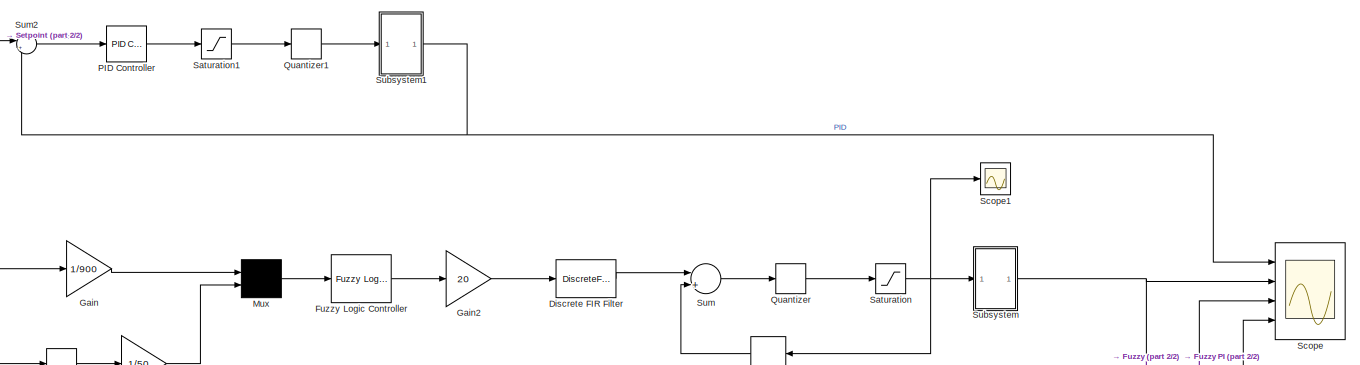
[diagram: root canvas - part 1/2, full width, top band]
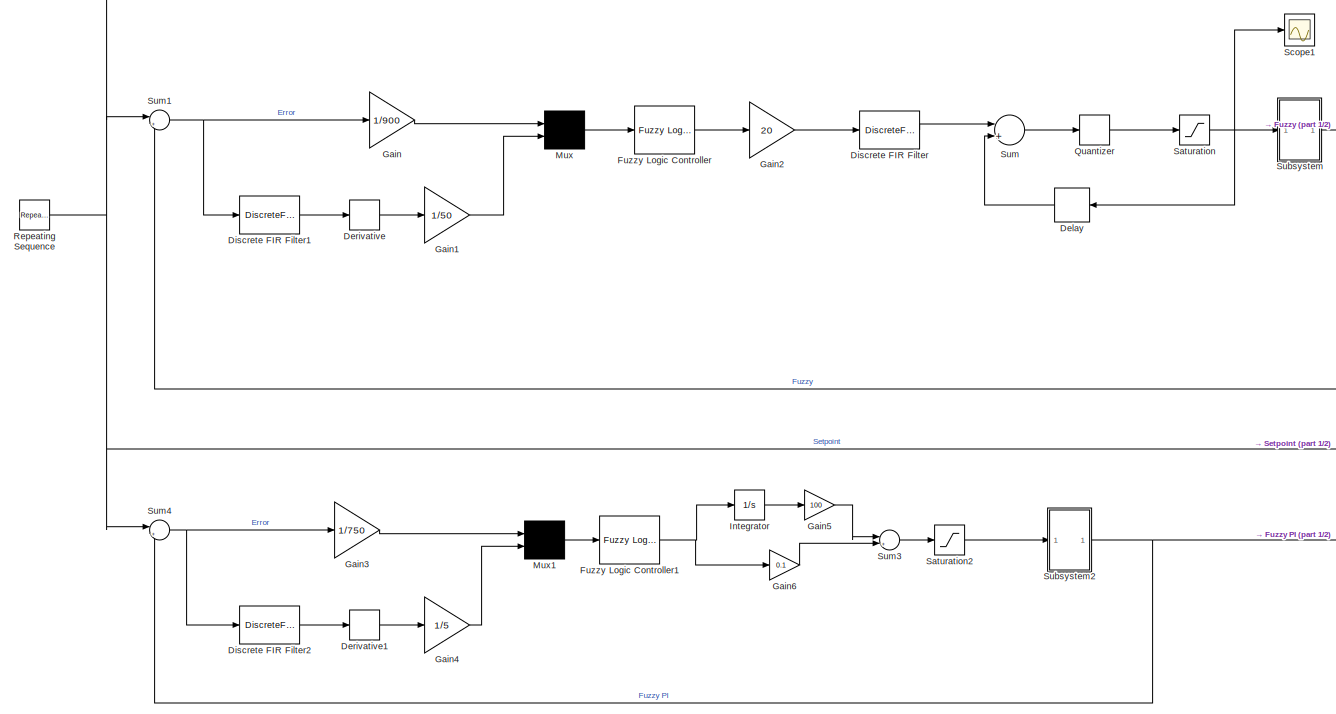
[diagram: root canvas - part 2/2, most of the canvas]
MODEL slx_39d7918f11b2
KIND model
CONFIG AbsTol = auto
CONFIG EnableMultiTasking = off
CONFIG FixedStep = auto
CONFIG MaxStep = auto
CONFIG MinStep = auto
CONFIG RelTol = 1e-3
CONFIG SampleTimeConstraint = Unconstrained
CONFIG Solver = VariableStepAuto
CONFIG SolverName = VariableStepAuto
CONFIG StartTime = 0.0
CONFIG StopTime = 1500.0
BLOCK [Delay] Delay
  DelayLength = 1
  InputPortMap = u0
  Ports = [1, 1]
BLOCK [Derivative] Derivative
BLOCK [Derivative] Derivative1
BLOCK [DiscreteFir] Discrete FIR Filter
  Coefficients = [0.25 0.25 0.25 0.25]
  InputPortMap = u0
  OutputPortMap = o0
  Ports = [1, 1]
BLOCK [DiscreteFir] Discrete FIR Filter1
  Coefficients = [0.25 0.25 0.25 0.25]
  InputPortMap = u0
  OutputPortMap = o0
  Ports = [1, 1]
BLOCK [DiscreteFir] Discrete FIR Filter2
  Coefficients = [0.25 0.25 0.25 0.25]
  InputPortMap = u0
  OutputPortMap = o0
  Ports = [1, 1]
BLOCK [Reference] Fuzzy Logic Controller  REF=fuzblock/Fuzzy Logic   (lib defined in mdl_858b3b3e7478)
Controller
  Ports = [1, 1]
  SourceBlock = fuzblock/Fuzzy Logic \nController
  SourceType = FIS
BLOCK [Reference] Fuzzy Logic Controller1  REF=fuzblock/Fuzzy Logic   (lib defined in mdl_858b3b3e7478)
Controller
  Ports = [1, 1]
  SourceBlock = fuzblock/Fuzzy Logic \nController
  SourceType = FIS
BLOCK [Gain] Gain
  Gain = 1/900
  OutDataTypeStr = Inherit: Inherit via internal rule
  ParamDataTypeStr = Inherit: Inherit via internal rule
  SaturateOnIntegerOverflow = off
BLOCK [Gain] Gain1
  Gain = 1/50
  OutDataTypeStr = Inherit: Inherit via internal rule
  ParamDataTypeStr = Inherit: Inherit via internal rule
  SaturateOnIntegerOverflow = off
BLOCK [Gain] Gain2
  Gain = 20
  OutDataTypeStr = Inherit: Inherit via internal rule
  ParamDataTypeStr = Inherit: Inherit via internal rule
  SaturateOnIntegerOverflow = off
BLOCK [Gain] Gain3
  Gain = 1/750
  OutDataTypeStr = Inherit: Inherit via internal rule
  ParamDataTypeStr = Inherit: Inherit via internal rule
  SaturateOnIntegerOverflow = off
BLOCK [Gain] Gain4
  Gain = 1/5
  OutDataTypeStr = Inherit: Inherit via internal rule
  ParamDataTypeStr = Inherit: Inherit via internal rule
  SaturateOnIntegerOverflow = off
BLOCK [Gain] Gain5
  Gain = 100
  OutDataTypeStr = Inherit: Inherit via internal rule
  ParamDataTypeStr = Inherit: Inherit via internal rule
  SaturateOnIntegerOverflow = off
BLOCK [Gain] Gain6
  Gain = 0.1
  OutDataTypeStr = Inherit: Inherit via internal rule
  ParamDataTypeStr = Inherit: Inherit via internal rule
  SaturateOnIntegerOverflow = off
BLOCK [Integrator] Integrator
  Ports = [1, 1]
BLOCK [Mux] Mux
  DisplayOption = signals
  Inputs = 2
  Ports = [2, 1]
BLOCK [Mux] Mux1
  DisplayOption = signals
  Inputs = 2
  Ports = [2, 1]
BLOCK [Reference] PID Controller  REF=simulink/Continuous/PID Controller
  Ports = [1, 1]
  SourceBlock = simulink/Continuous/PID Controller
  SourceType = PID 1dof
BLOCK [Quantizer] Quantizer
  QuantizationInterval = 1
BLOCK [Quantizer] Quantizer1
  QuantizationInterval = 1
BLOCK [Reference] Repeating Sequence  REF=simulink/Sources/Repeating
Sequence
  Ports = [0, 1]
  SourceBlock = simulink/Sources/Repeating\nSequence
  SourceType = Repeating table
BLOCK [Saturate] Saturation
  InputPortMap = u0
  LowerLimit = 0
  Ports = [1, 1]
  UpperLimit = 100
BLOCK [Saturate] Saturation1
  InputPortMap = u0
  LowerLimit = 0
  Ports = [1, 1]
  UpperLimit = 100
BLOCK [Saturate] Saturation2
  InputPortMap = u0
  LowerLimit = 0
  Ports = [1, 1]
  UpperLimit = 100
BLOCK [Scope] Scope
  NumInputPorts = 4
  Ports = [4]
  ScopeSpecificationString = Simulink.scopes.TimeScopeBlockCfg('CurrentConfiguration', extmgr.ConfigurationSet(extmgr.Configuration('Core','General UI',true),extmgr.Configuration('Core','Source UI',true),extmgr.Configuration('Sources','WiredSimulink',true),extmgr.Configuration('Visuals','Time Domain',true,'SerializedDisplays',{struct('MinYLimReal','848.01671','MaxYLimReal','944.57462','YLabelReal','','MinYLimMag','848.01671',...<+1436ch>
BLOCK [Scope] Scope1
  NumInputPorts = 1
  Ports = [1]
  ScopeSpecificationString = Simulink.scopes.TimeScopeBlockCfg('CurrentConfiguration', extmgr.ConfigurationSet(extmgr.Configuration('Core','General UI',true),extmgr.Configuration('Core','Source UI',true),extmgr.Configuration('Sources','WiredSimulink',true,'DataLoggingVariableName','ScopeData1'),extmgr.Configuration('Visuals','Time Domain',true,'SerializedDisplays',{struct('MinYLimReal','31.375','MaxYLimReal','107.625','YLabel...<+1409ch>
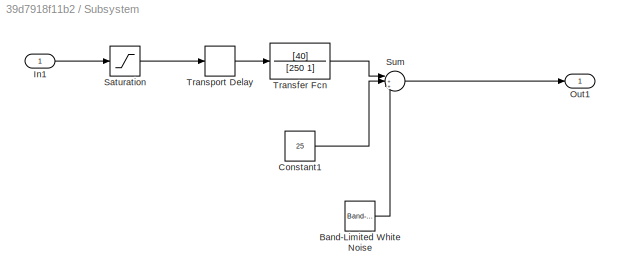
BLOCK [SubSystem] Subsystem
  Ports = [1, 1]
  RequestExecContextInheritance = off
  Variant = off
BLOCK [Reference] Subsystem/Band-Limited White Noise  REF=simulink/Sources/Band-Limited
White Noise
  Ports = [0, 1]
  SourceBlock = simulink/Sources/Band-Limited\nWhite Noise
  SourceType = Band-Limited White Noise.
BLOCK [Constant] Subsystem/Constant1
  Value = 25
BLOCK [Inport] Subsystem/In1
  IconDisplay = Port number
  OutMax = [100]
  OutMin = [0]
BLOCK [Outport] Subsystem/Out1
  IconDisplay = Port number
BLOCK [Saturate] Subsystem/Saturation
  InputPortMap = u0
  LowerLimit = 0
  Ports = [1, 1]
  UpperLimit = 100
BLOCK [Sum] Subsystem/Sum
  IconShape = round
  InputSameDT = off
  Inputs = |+++
  OutDataTypeStr = Inherit: Inherit via internal rule
  Ports = [3, 1]
  SaturateOnIntegerOverflow = off
BLOCK [TransferFcn] Subsystem/Transfer Fcn
  Denominator = [250 1]
  Numerator = [40]
BLOCK [TransportDelay] Subsystem/Transport Delay
  Ports = [1, 1]
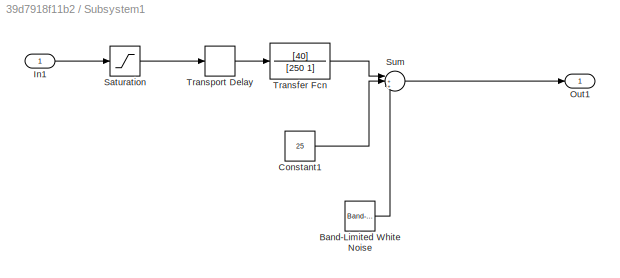
BLOCK [SubSystem] Subsystem1
  Ports = [1, 1]
  RequestExecContextInheritance = off
  Variant = off
BLOCK [Reference] Subsystem1/Band-Limited White Noise  REF=simulink/Sources/Band-Limited
White Noise
  Ports = [0, 1]
  SourceBlock = simulink/Sources/Band-Limited\nWhite Noise
  SourceType = Band-Limited White Noise.
BLOCK [Constant] Subsystem1/Constant1
  Value = 25
BLOCK [Inport] Subsystem1/In1
  IconDisplay = Port number
  OutMax = [100]
  OutMin = [0]
BLOCK [Outport] Subsystem1/Out1
  IconDisplay = Port number
BLOCK [Saturate] Subsystem1/Saturation
  InputPortMap = u0
  LowerLimit = 0
  Ports = [1, 1]
  UpperLimit = 100
BLOCK [Sum] Subsystem1/Sum
  IconShape = round
  InputSameDT = off
  Inputs = |+++
  OutDataTypeStr = Inherit: Inherit via internal rule
  Ports = [3, 1]
  SaturateOnIntegerOverflow = off
BLOCK [TransferFcn] Subsystem1/Transfer Fcn
  Denominator = [250 1]
  Numerator = [40]
BLOCK [TransportDelay] Subsystem1/Transport Delay
  Ports = [1, 1]
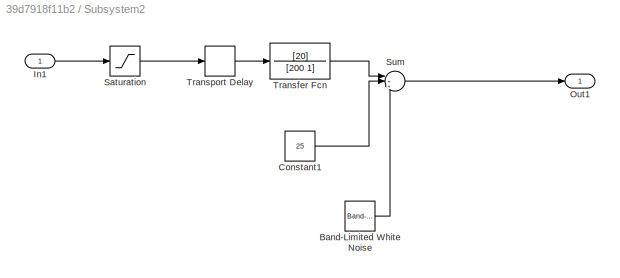
BLOCK [SubSystem] Subsystem2
  Ports = [1, 1]
  RequestExecContextInheritance = off
  Variant = off
BLOCK [Reference] Subsystem2/Band-Limited White Noise  REF=simulink/Sources/Band-Limited
White Noise
  Ports = [0, 1]
  SourceBlock = simulink/Sources/Band-Limited\nWhite Noise
  SourceType = Band-Limited White Noise.
BLOCK [Constant] Subsystem2/Constant1
  Value = 25
BLOCK [Inport] Subsystem2/In1
  IconDisplay = Port number
  OutMax = [100]
  OutMin = [0]
BLOCK [Outport] Subsystem2/Out1
  IconDisplay = Port number
BLOCK [Saturate] Subsystem2/Saturation
  InputPortMap = u0
  LowerLimit = 0
  Ports = [1, 1]
  UpperLimit = 100
BLOCK [Sum] Subsystem2/Sum
  IconShape = round
  InputSameDT = off
  Inputs = |+++
  OutDataTypeStr = Inherit: Inherit via internal rule
  Ports = [3, 1]
  SaturateOnIntegerOverflow = off
BLOCK [TransferFcn] Subsystem2/Transfer Fcn
  Denominator = [200 1]
  Numerator = [20]
BLOCK [TransportDelay] Subsystem2/Transport Delay
  Ports = [1, 1]
BLOCK [Sum] Sum
  InputSameDT = off
  Inputs = |++
  OutDataTypeStr = Inherit: Inherit via internal rule
  Ports = [2, 1]
  SaturateOnIntegerOverflow = off
BLOCK [Sum] Sum1
  IconShape = round
  InputSameDT = off
  Inputs = |+-
  OutDataTypeStr = Inherit: Inherit via internal rule
  Ports = [2, 1]
  SaturateOnIntegerOverflow = off
BLOCK [Sum] Sum2
  IconShape = round
  InputSameDT = off
  Inputs = |+-
  OutDataTypeStr = Inherit: Inherit via internal rule
  Ports = [2, 1]
  SaturateOnIntegerOverflow = off
BLOCK [Sum] Sum3
  IconShape = round
  InputSameDT = off
  Inputs = |++
  OutDataTypeStr = Inherit: Inherit via internal rule
  Ports = [2, 1]
  SaturateOnIntegerOverflow = off
BLOCK [Sum] Sum4
  IconShape = round
  InputSameDT = off
  Inputs = |+-
  OutDataTypeStr = Inherit: Inherit via internal rule
  Ports = [2, 1]
  SaturateOnIntegerOverflow = off
LINE Delay:1 -> Sum:2
LINE Derivative1:1 -> Gain4:1
LINE Derivative:1 -> Gain1:1
LINE Discrete FIR Filter1:1 -> Derivative:1
LINE Discrete FIR Filter2:1 -> Derivative1:1
LINE Discrete FIR Filter:1 -> Sum:1
NET Fuzzy Logic Controller1:1 -> Gain6:1, Integrator:1
LINE Fuzzy Logic Controller:1 -> Gain2:1
LINE Gain1:1 -> Mux:2
LINE Gain2:1 -> Discrete FIR Filter:1
LINE Gain3:1 -> Mux1:1
LINE Gain4:1 -> Mux1:2
LINE Gain5:1 -> Sum3:1
LINE Gain6:1 -> Sum3:2
LINE Gain:1 -> Mux:1
LINE Integrator:1 -> Gain5:1
LINE Mux1:1 -> Fuzzy Logic Controller1:1
LINE Mux:1 -> Fuzzy Logic Controller:1
LINE PID Controller:1 -> Saturation1:1
LINE Quantizer1:1 -> Subsystem1:1
LINE Quantizer:1 -> Saturation:1
NET Repeating Sequence:1 -> Scope:4, Sum1:1, Sum2:1, Sum4:1
LINE Saturation1:1 -> Quantizer1:1
LINE Saturation2:1 -> Subsystem2:1
NET Saturation:1 -> Delay:1, Scope1:1, Subsystem:1
LINE Subsystem/Band-Limited White Noise:1 -> Subsystem/Sum:3
LINE Subsystem/Constant1:1 -> Subsystem/Sum:2
LINE Subsystem/In1:1 -> Subsystem/Saturation:1
LINE Subsystem/Saturation:1 -> Subsystem/Transport Delay:1
LINE Subsystem/Sum:1 -> Subsystem/Out1:1
LINE Subsystem/Transfer Fcn:1 -> Subsystem/Sum:1
LINE Subsystem/Transport Delay:1 -> Subsystem/Transfer Fcn:1
LINE Subsystem1/Band-Limited White Noise:1 -> Subsystem1/Sum:3
LINE Subsystem1/Constant1:1 -> Subsystem1/Sum:2
LINE Subsystem1/In1:1 -> Subsystem1/Saturation:1
LINE Subsystem1/Saturation:1 -> Subsystem1/Transport Delay:1
LINE Subsystem1/Sum:1 -> Subsystem1/Out1:1
LINE Subsystem1/Transfer Fcn:1 -> Subsystem1/Sum:1
LINE Subsystem1/Transport Delay:1 -> Subsystem1/Transfer Fcn:1
NET Subsystem1:1 -> Scope:1, Sum2:2
LINE Subsystem2/Band-Limited White Noise:1 -> Subsystem2/Sum:3
LINE Subsystem2/Constant1:1 -> Subsystem2/Sum:2
LINE Subsystem2/In1:1 -> Subsystem2/Saturation:1
LINE Subsystem2/Saturation:1 -> Subsystem2/Transport Delay:1
LINE Subsystem2/Sum:1 -> Subsystem2/Out1:1
LINE Subsystem2/Transfer Fcn:1 -> Subsystem2/Sum:1
LINE Subsystem2/Transport Delay:1 -> Subsystem2/Transfer Fcn:1
NET Subsystem2:1 -> Scope:3, Sum4:2
NET Subsystem:1 -> Scope:2, Sum1:2
NET Sum1:1 -> Discrete FIR Filter1:1, Gain:1
LINE Sum2:1 -> PID Controller:1
LINE Sum3:1 -> Saturation2:1
NET Sum4:1 -> Discrete FIR Filter2:1, Gain3:1
LINE Sum:1 -> Quantizer:1
note: NET lines group one-source signal fan-out (src -> all destinations, sorted); 1:1 wires keep LINE
